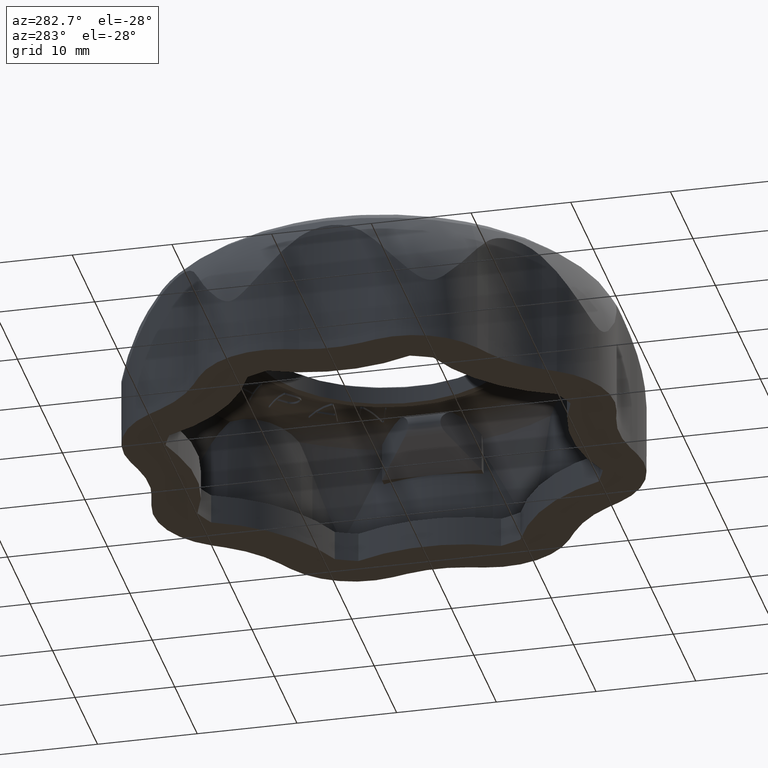
[diagram: clean part render]
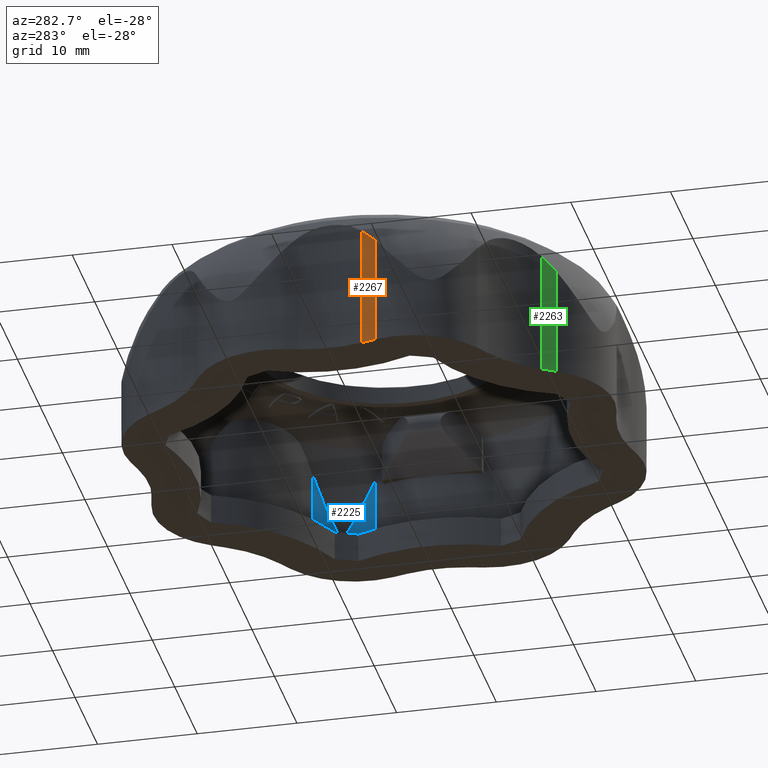
[diagram: same view with three faces highlighted in distinct colors, each labeled with its STEP entity id]
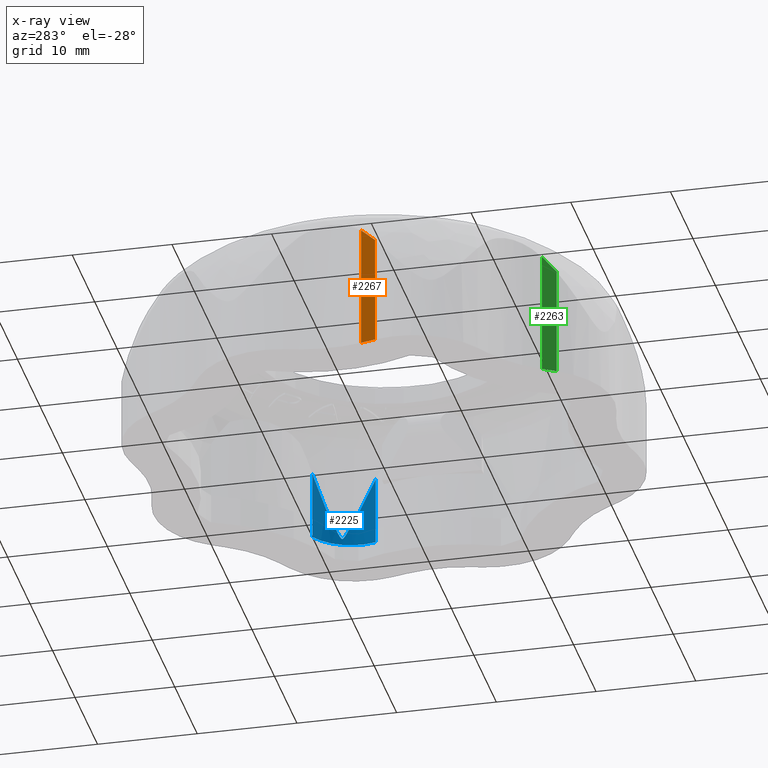
[diagram: x-ray of the same camera — body ghosted, the three highlighted faces saturated]
A machine part, auxiliary view with three faces highlighted in distinct colors.
The next image is the same camera in x-ray (body ghosted, the three faces saturated) — at least one of them is partly hidden behind the body in this view.
Their STEP definitions:

[orange] entity #2267 — the highlighted planar face has unit normal (-0.9694, 0.2454, 0).
#2267 = ADVANCED_FACE( '', ( #6703 ), #6704, .T. );
#6703 = FACE_OUTER_BOUND( '', #11339, .T. );
#6704 = PLANE( '', #11340 );
#11339 = EDGE_LOOP( '', ( #30935, #30936, #30937, #30938 ) );
#11340 = AXIS2_PLACEMENT_3D( '', #30939, #30940, #30941 );
#30935 = ORIENTED_EDGE( '', *, *, #37610, .F. );
#30936 = ORIENTED_EDGE( '', *, *, #31125, .T. );
#30937 = ORIENTED_EDGE( '', *, *, #37608, .T. );
#30938 = ORIENTED_EDGE( '', *, *, #37611, .T. );
#30939 = CARTESIAN_POINT( '', ( -23.9882867072889, -3.11636159784328, -73.6467559307809 ) );
#30940 = DIRECTION( '', ( -0.969426253686740, 0.245382841011534, 0.000000000000000 ) );
#30941 = DIRECTION( '', ( -0.245382841011534, -0.969426253686740, 0.000000000000000 ) );
#31125 = EDGE_CURVE( '', #37678, #37676, #37679, .T. );
#37608 = EDGE_CURVE( '', #37676, #48481, #48482, .T. );
#37610 = EDGE_CURVE( '', #37678, #48484, #48485, .T. );
#37611 = EDGE_CURVE( '', #48481, #48484, #48486, .T. );
#37676 = VERTEX_POINT( '', #48577 );
#37678 = VERTEX_POINT( '', #48579 );
#37679 = LINE( '', #48580, #48581 );
#48481 = VERTEX_POINT( '', #75843 );
#48482 = LINE( '', #75844, #75845 );
#48484 = VERTEX_POINT( '', #75878 );
#48485 = LINE( '', #75879, #75880 );
#48486 = B_SPLINE_CURVE_WITH_KNOTS( '', 3, ( #75881, #75882, #75883, #75884 ), .UNSPECIFIED., .F., .F., ( 4, 4 ), ( 3.72632355295676E-007, 0.00208636271297123 ), .UNSPECIFIED. );
#48577 = CARTESIAN_POINT( '', ( -24.3618209986592, -4.59207174617283, -4.31452799373039E-005 ) );
#48579 = CARTESIAN_POINT( '', ( -23.9882867072889, -3.11636159784328, -4.31452799373039E-005 ) );
#48580 = CARTESIAN_POINT( '', ( -21.8025644009489, 5.51870260754314, -4.31452799373039E-005 ) );
#48581 = VECTOR( '', #76222, 1000.00000000000 );
#75843 = CARTESIAN_POINT( '', ( -24.3618209986561, -4.59207174616049, 11.0172711045501 ) );
#75844 = CARTESIAN_POINT( '', ( -24.3618209986592, -4.59207174617283, -73.6467559307809 ) );
#75845 = VECTOR( '', #78708, 1000.00000000000 );
#75878 = CARTESIAN_POINT( '', ( -23.9882867072861, -3.11636159783241, 12.4434920929498 ) );
#75879 = CARTESIAN_POINT( '', ( -23.9882867072888, -3.11636159784325, -73.6467559307809 ) );
#75880 = VECTOR( '', #78709, 1000.00000000000 );
#75881 = CARTESIAN_POINT( '', ( -24.3618209986562, -4.59207174616076, 11.0172711045504 ) );
#75882 = CARTESIAN_POINT( '', ( -24.2475952083835, -4.14080351777947, 11.5374168931417 ) );
#75883 = CARTESIAN_POINT( '', ( -24.1228441891038, -3.64795359899402, 12.0117817650672 ) );
#75884 = CARTESIAN_POINT( '', ( -23.9882867072862, -3.11636159783259, 12.4434920929500 ) );
#76222 = DIRECTION( '', ( -0.245382841011534, -0.969426253686740, -4.90901291005808E-017 ) );
#78708 = DIRECTION( '', ( 0.000000000000000, 0.000000000000000, 1.00000000000000 ) );
#78709 = DIRECTION( '', ( 0.000000000000000, 0.000000000000000, 1.00000000000000 ) );

[blue] entity #2225 — the highlighted cylindrical surface (partial cylindrical patch) has radius 5 mm, axis along (0, 0, -1).
#2225 = ADVANCED_FACE( '', ( #6618 ), #6619, .F. );
#6618 = FACE_OUTER_BOUND( '', #11254, .T. );
#6619 = CYLINDRICAL_SURFACE( '', #11255, 4.99999997493484 );
#11254 = EDGE_LOOP( '', ( #30639, #30640, #30641, #30642 ) );
#11255 = AXIS2_PLACEMENT_3D( '', #30643, #30644, #30645 );
#30639 = ORIENTED_EDGE( '', *, *, #37557, .T. );
#30640 = ORIENTED_EDGE( '', *, *, #32879, .F. );
#30641 = ORIENTED_EDGE( '', *, *, #37556, .F. );
#30642 = ORIENTED_EDGE( '', *, *, #32914, .F. );
#30643 = CARTESIAN_POINT( '', ( 17.5999050465053, 7.29011913653650, -68.3397040569276 ) );
#30644 = DIRECTION( '', ( 0.000000000000000, 0.000000000000000, -1.00000000000000 ) );
#30645 = DIRECTION( '', ( 0.878667756896498, -0.477433736753570, 0.000000000000000 ) );
#32879 = EDGE_CURVE( '', #41174, #41176, #41177, .T. );
#32914 = EDGE_CURVE( '', #41243, #41245, #41246, .T. );
#37556 = EDGE_CURVE( '', #41245, #41174, #48415, .T. );
#37557 = EDGE_CURVE( '', #41243, #41176, #48416, .T. );
#41174 = VERTEX_POINT( '', #57687 );
#41176 = VERTEX_POINT( '', #57692 );
#41177 = B_SPLINE_CURVE_WITH_KNOTS( '', 3, ( #57693, #57694, #57695, #57696, #57697, #57698, #57699, #57700, #57701, #57702, #57703, #57704, #57705, #57706, #57707, #57708, #57709, #57710, #57711, #57712, #57713, #57714, #57715, #57716, #57717, #57718, #57719, #57720, #57721, #57722, #57723, #57724 ), .UNSPECIFIED., .F., .F., ( 4, 2, 2, 2, 2, 2, 2, 2, 2, 2, 2, 2, 2, 2, 2, 4 ), ( 5.42593528952018E-007, 0.00360129002967859, 0.00540166374775341, 0.00630185060679082, 0.00675194403630953, 0.00697699075106888, 0.00708951410844856, 0.00714577578713840, 0.00720203746582824, 0.00731456082320791, 0.00742708418058758, 0.00765213089534692, 0.00810222432486561, 0.00900241118390298, 0.0108027849019777, 0.0144035323381272 ), .UNSPECIFIED. );
#41243 = VERTEX_POINT( '', #57842 );
#41245 = VERTEX_POINT( '', #57845 );
#41246 = CIRCLE( '', #57846, 4.99999997493484 );
#48415 = LINE( '', #75576, #75577 );
#48416 = LINE( '', #75578, #75579 );
#57687 = CARTESIAN_POINT( '', ( 19.9870721904978, 11.6834587291462, 9.97476532602732 ) );
#57692 = CARTESIAN_POINT( '', ( 22.3944474835809, 5.87154147971604, 9.97476416622805 ) );
#57693 = CARTESIAN_POINT( '', ( 19.9870721904979, 11.6834587291461, 9.97476532602741 ) );
#57694 = CARTESIAN_POINT( '', ( 20.4871596308354, 11.4117309736351, 8.90715557861680 ) );
#57695 = CARTESIAN_POINT( '', ( 20.9245887346779, 11.0645334843203, 7.84331348392737 ) );
#57696 = CARTESIAN_POINT( '', ( 21.4780791751917, 10.4578780546659, 6.24030306809206 ) );
#57697 = CARTESIAN_POINT( '', ( 21.6453210474160, 10.2414499018574, 5.70466909136742 ) );
#57698 = CARTESIAN_POINT( '', ( 21.8699320661928, 9.89507691735428, 4.89928439985049 ) );
#57699 = CARTESIAN_POINT( '', ( 21.9403350573062, 9.77621933841342, 4.63011146821518 ) );
#57700 = CARTESIAN_POINT( '', ( 22.0405870108230, 9.58910809407912, 4.22933184965152 ) );
#57701 = CARTESIAN_POINT( '', ( 22.0729809172510, 9.52560332637696, 4.09593742895974 ) );
#57702 = CARTESIAN_POINT( '', ( 22.1224775366074, 9.42267328846369, 3.90004343960444 ) );
#57703 = CARTESIAN_POINT( '', ( 22.1390007593113, 9.38739971277244, 3.83513647274587 ) );
#57704 = CARTESIAN_POINT( '', ( 22.1664287720543, 9.32662467357232, 3.74337635536712 ) );
#57705 = CARTESIAN_POINT( '', ( 22.1758864012197, 9.30535939659035, 3.71361043207806 ) );
#57706 = CARTESIAN_POINT( '', ( 22.1927547947948, 9.26646188711327, 3.67555625229252 ) );
#57707 = CARTESIAN_POINT( '', ( 22.1988787843875, 9.25219433570890, 3.66405188650649 ) );
#57708 = CARTESIAN_POINT( '', ( 22.2123346750729, 9.22035006843286, 3.64942675102477 ) );
#57709 = CARTESIAN_POINT( '', ( 22.2199282421078, 9.20211485813767, 3.64709803032781 ) );
#57710 = CARTESIAN_POINT( '', ( 22.2409603873229, 9.15075718428414, 3.66057373739446 ) );
#57711 = CARTESIAN_POINT( '', ( 22.2514511783465, 9.12417191880619, 3.68881578107156 ) );
#57712 = CARTESIAN_POINT( '', ( 22.2696481802842, 9.07733207553475, 3.74498736201731 ) );
#57713 = CARTESIAN_POINT( '', ( 22.2774252787936, 9.05682435038478, 3.77531364354912 ) );
#57714 = CARTESIAN_POINT( '', ( 22.2994892726336, 8.99765543129040, 3.86815264244861 ) );
#57715 = CARTESIAN_POINT( '', ( 22.3123662761485, 8.96167587250659, 3.93285907800050 ) );
#57716 = CARTESIAN_POINT( '', ( 22.3490090904588, 8.85587217628661, 4.12799815055734 ) );
#57717 = CARTESIAN_POINT( '', ( 22.3705535568385, 8.78872266609887, 4.26027084691863 ) );
#57718 = CARTESIAN_POINT( '', ( 22.4306779715446, 8.58751371433700, 4.65790516213162 ) );
#57719 = CARTESIAN_POINT( '', ( 22.4643099458978, 8.45468906288496, 4.92489734331275 ) );
#57720 = CARTESIAN_POINT( '', ( 22.5488006094310, 8.05370673043938, 5.72459072522793 ) );
#57721 = CARTESIAN_POINT( '', ( 22.5829079080077, 7.78396275527472, 6.25698416554973 ) );
#57722 = CARTESIAN_POINT( '', ( 22.6191445833684, 6.96758018759590, 7.85200462015245 ) );
#57723 = CARTESIAN_POINT( '', ( 22.5545705908062, 6.41272935833322, 8.91609013501388 ) );
#57724 = CARTESIAN_POINT( '', ( 22.3944474835809, 5.87154147971614, 9.97476416622811 ) );
#57842 = CARTESIAN_POINT( '', ( 22.3944474835809, 5.87154147971604, 2.99995685472006 ) );
#57845 = CARTESIAN_POINT( '', ( 19.9870721905090, 11.6834587291401, 2.99995685472006 ) );
#57846 = AXIS2_PLACEMENT_3D( '', #76446, #76447, #76448 );
#75576 = CARTESIAN_POINT( '', ( 19.9870721905090, 11.6834587291401, -68.3397040569276 ) );
#75577 = VECTOR( '', #78666, 1000.00000000000 );
#75578 = CARTESIAN_POINT( '', ( 22.3944474835810, 5.87154147971586, -68.3397040569276 ) );
#75579 = VECTOR( '', #78667, 1000.00000000000 );
#76446 = CARTESIAN_POINT( '', ( 17.5999050465053, 7.29011913653650, 2.99995685472006 ) );
#76447 = DIRECTION( '', ( 2.34318281388423E-017, -5.65694372839885E-017, 1.00000000000000 ) );
#76448 = DIRECTION( '', ( 0.382683432365090, -0.923879532511287, -6.12303176911189E-017 ) );
#78666 = DIRECTION( '', ( 0.000000000000000, 0.000000000000000, 1.00000000000000 ) );
#78667 = DIRECTION( '', ( 0.000000000000000, 0.000000000000000, 1.00000000000000 ) );

[green] entity #2263 — the highlighted planar face has unit normal (-0.859, -0.512, 0).
#2263 = ADVANCED_FACE( '', ( #6695 ), #6696, .T. );
#6695 = FACE_OUTER_BOUND( '', #11331, .T. );
#6696 = PLANE( '', #11332 );
#11331 = EDGE_LOOP( '', ( #30907, #30908, #30909, #30910 ) );
#11332 = AXIS2_PLACEMENT_3D( '', #30911, #30912, #30913 );
#30907 = ORIENTED_EDGE( '', *, *, #37602, .F. );
#30908 = ORIENTED_EDGE( '', *, *, #31121, .T. );
#30909 = ORIENTED_EDGE( '', *, *, #37600, .T. );
#30910 = ORIENTED_EDGE( '', *, *, #37603, .T. );
#30911 = CARTESIAN_POINT( '', ( -14.7586810238286, -19.1658789673450, -73.6467559307809 ) );
#30912 = DIRECTION( '', ( -0.858999674006630, -0.511976132311364, 0.000000000000000 ) );
#30913 = DIRECTION( '', ( 0.511976132311364, -0.858999674006630, 0.000000000000000 ) );
#31121 = EDGE_CURVE( '', #37670, #37668, #37671, .T. );
#37600 = EDGE_CURVE( '', #37668, #48469, #48470, .T. );
#37602 = EDGE_CURVE( '', #37670, #48472, #48473, .T. );
#37603 = EDGE_CURVE( '', #48469, #48472, #48474, .T. );
#37668 = VERTEX_POINT( '', #48567 );
#37670 = VERTEX_POINT( '', #48569 );
#37671 = LINE( '', #48570, #48571 );
#48469 = VERTEX_POINT( '', #75773 );
#48470 = LINE( '', #75774, #75775 );
#48472 = VERTEX_POINT( '', #75808 );
#48473 = LINE( '', #75809, #75810 );
#48474 = B_SPLINE_CURVE_WITH_KNOTS( '', 3, ( #75811, #75812, #75813, #75814 ), .UNSPECIFIED., .F., .F., ( 4, 4 ), ( 3.01908104187495E-007, 0.00208629614427849 ), .UNSPECIFIED. );
#48567 = CARTESIAN_POINT( '', ( -13.9793231238272, -20.4734949669685, -4.31452799373039E-005 ) );
#48569 = CARTESIAN_POINT( '', ( -14.7586810238286, -19.1658789673450, -4.31452799373039E-005 ) );
#48570 = CARTESIAN_POINT( '', ( -19.3190527994635, -11.5144326959454, -4.31452799373039E-005 ) );
#48571 = VECTOR( '', #76214, 1000.00000000000 );
#75773 = CARTESIAN_POINT( '', ( -13.9793231238272, -20.4734949669685, 11.0172697187238 ) );
#75774 = CARTESIAN_POINT( '', ( -13.9793231238272, -20.4734949669685, -73.6467559307809 ) );
#75775 = VECTOR( '', #78704, 1000.00000000000 );
#75808 = CARTESIAN_POINT( '', ( -14.7586810238367, -19.1658789673315, 12.4434932687184 ) );
#75809 = CARTESIAN_POINT( '', ( -14.7586810238286, -19.1658789673450, -73.6467559307809 ) );
#75810 = VECTOR( '', #78705, 1000.00000000000 );
#75811 = CARTESIAN_POINT( '', ( -13.9793231238271, -20.4734949669687, 11.0172697187240 ) );
#75812 = CARTESIAN_POINT( '', ( -14.2176486641289, -20.0736295269481, 11.5374165773401 ) );
#75813 = CARTESIAN_POINT( '', ( -14.4779345227925, -19.6369188023070, 12.0117822918355 ) );
#75814 = CARTESIAN_POINT( '', ( -14.7586810238366, -19.1658789673316, 12.4434932687185 ) );
#76214 = DIRECTION( '', ( 0.511976132311364, -0.858999674006630, -6.05896649291937E-017 ) );
#78704 = DIRECTION( '', ( 0.000000000000000, 0.000000000000000, 1.00000000000000 ) );
#78705 = DIRECTION( '', ( 0.000000000000000, 0.000000000000000, 1.00000000000000 ) );